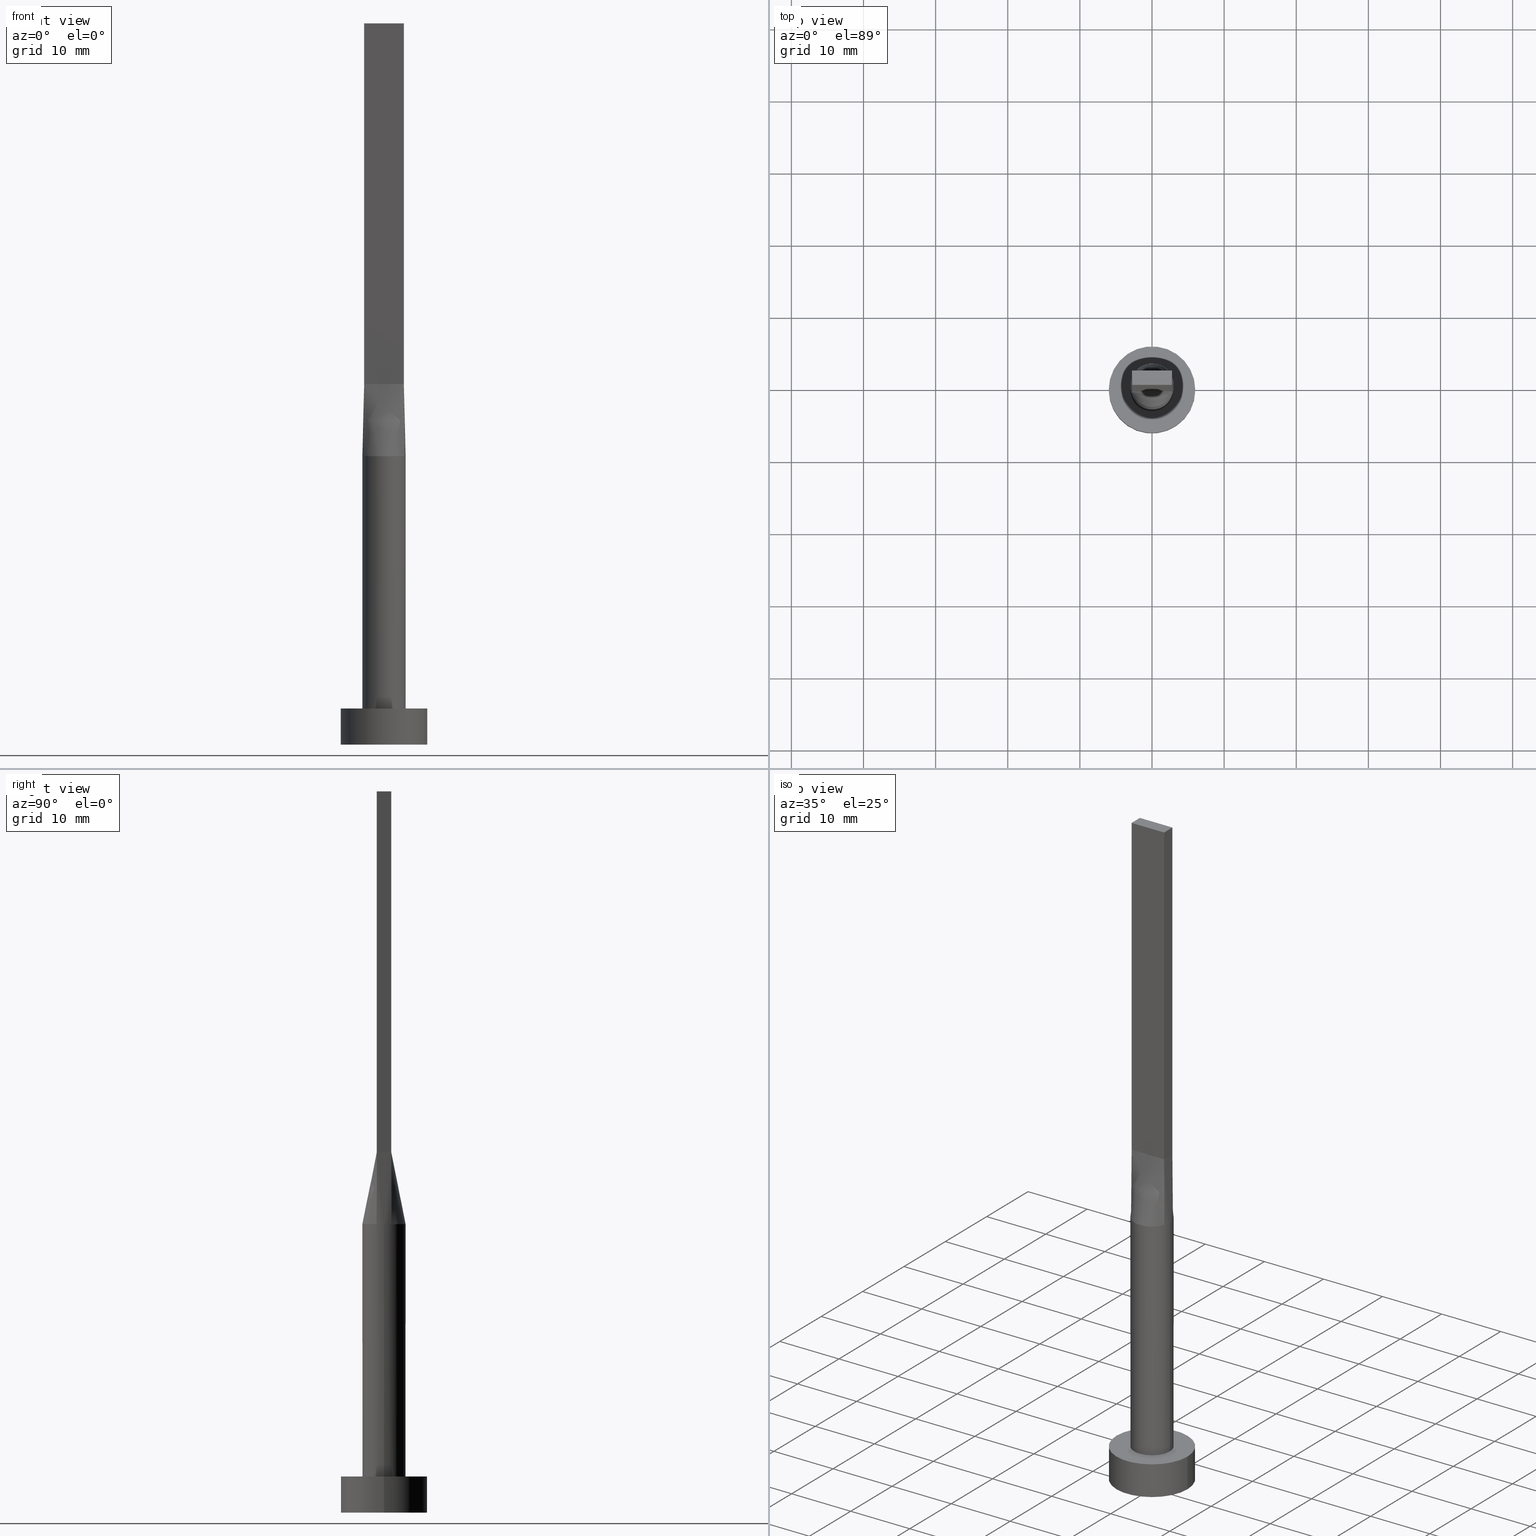
[diagram: canonical four-view strip — front | top / right | iso, engineering-drawing reading convention]
A machine part, canonical four-view strip (front | top / right | iso — engineering-drawing reading convention). The complete STEP part file that produces these views, byte-faithful:
ISO-10303-21;
HEADER;
FILE_DESCRIPTION (( 'STEP AP203' ),
    '1' );
FILE_NAME ('4708.STEP',
    '2023-02-13T10:27:56',
    ( '' ),
    ( '' ),
    'SwSTEP 2.0',
    'SolidWorks 2019',
    '' );
FILE_SCHEMA (( 'CONFIG_CONTROL_DESIGN' ));
ENDSEC;

DATA;
#1 = VECTOR ( 'NONE', #337, 1000.000000000000000 ) ;
#2 = DIRECTION ( 'NONE',  ( -1.000000000000000000, 7.885106708985487801E-17, 0.000000000000000000 ) ) ;
#3 = FACE_OUTER_BOUND ( 'NONE', #84, .T. ) ;
#4 = FACE_OUTER_BOUND ( 'NONE', #371, .T. ) ;
#5 = CARTESIAN_POINT ( 'NONE',  ( 2.749999999999999556, 1.000000000000000000, 50.00000000000000000 ) ) ;
#6 = EDGE_CURVE ( 'NONE', #541, #555, #210, .T. ) ;
#7 = EDGE_CURVE ( 'NONE', #327, #315, #133, .T. ) ;
#8 = AXIS2_PLACEMENT_3D ( 'NONE', #365, #230, #495 ) ;
#9 = COORDINATED_UNIVERSAL_TIME_OFFSET ( 1, 0, .AHEAD. ) ;
#10 = CARTESIAN_POINT ( 'NONE',  ( -2.625980160873452096, 1.476334031700886396, 39.99999999999998579 ) ) ;
#11 = ORIENTED_EDGE ( 'NONE', *, *, #336, .F. ) ;
#12 = DIRECTION ( 'NONE',  ( 1.000000000000000000, 8.881784197001252323E-16, 0.000000000000000000 ) ) ;
#13 = CARTESIAN_POINT ( 'NONE',  ( 2.115507543051069916, 2.149870311632976705, 40.00000000000000711 ) ) ;
#14 = ORIENTED_EDGE ( 'NONE', *, *, #80, .T. ) ;
#15 = EDGE_CURVE ( 'NONE', #374, #258, #182, .T. ) ;
#16 = CARTESIAN_POINT ( 'NONE',  ( -1.145833333333331261, 1.000000000000000000, 50.00000000000000000 ) ) ;
#17 = ORIENTED_EDGE ( 'NONE', *, *, #383, .T. ) ;
#18 = APPROVAL_STATUS ( 'not_yet_approved' ) ;
#19 = CIRCLE ( 'NONE', #354, 3.000000000000000444 ) ;
#20 = LINE ( 'NONE', #417, #218 ) ;
#21 = ORIENTED_EDGE ( 'NONE', *, *, #261, .F. ) ;
#22 = ORIENTED_EDGE ( 'NONE', *, *, #176, .T. ) ;
#23 = VECTOR ( 'NONE', #285, 1000.000000000000000 ) ;
#24 = ORIENTED_EDGE ( 'NONE', *, *, #338, .T. ) ;
#25 = LINE ( 'NONE', #373, #395 ) ;
#26 = ORIENTED_EDGE ( 'NONE', *, *, #451, .T. ) ;
#27 = ADVANCED_FACE ( 'NONE', ( #138 ), #562, .T. ) ;
#28 = LINE ( 'NONE', #423, #572 ) ;
#29 = CARTESIAN_POINT ( 'NONE',  ( 0.2291666666666665464, -0.9999999999999995559, 50.00000000000000711 ) ) ;
#30 = EDGE_CURVE ( 'NONE', #501, #326, #19, .T. ) ;
#31 = DIRECTION ( 'NONE',  ( -0.000000000000000000, -0.000000000000000000, -1.000000000000000000 ) ) ;
#32 = CARTESIAN_POINT ( 'NONE',  ( 1.833333333333333481, -0.9999999999999995559, 50.00000000000000000 ) ) ;
#33 = LOCAL_TIME ( 11, 27, 56.00000000000000000, #117 ) ;
#34 = DIRECTION ( 'NONE',  ( 0.000000000000000000, 0.000000000000000000, 1.000000000000000000 ) ) ;
#35 = CARTESIAN_POINT ( 'NONE',  ( -2.115507543051069472, -2.149870311632975373, 40.00000000000000000 ) ) ;
#36 = DIRECTION ( 'NONE',  ( -1.000000000000000000, -0.000000000000000000, -0.000000000000000000 ) ) ;
#37 = DIRECTION ( 'NONE',  ( 0.000000000000000000, 0.000000000000000000, 1.000000000000000000 ) ) ;
#38 = CARTESIAN_POINT ( 'NONE',  ( 2.749999999999999556, 0.3333333333333333148, 50.00000000000000000 ) ) ;
#39 = CC_DESIGN_APPROVAL ( #517, ( #128 ) ) ;
#40 = CIRCLE ( 'NONE', #370, 6.000000000000000888 ) ;
#41 = ADVANCED_FACE ( 'NONE', ( #394 ), #162, .T. ) ;
#42 = DIRECTION ( 'NONE',  ( 0.000000000000000000, 0.000000000000000000, 1.000000000000000000 ) ) ;
#43 = CARTESIAN_POINT ( 'NONE',  ( -0.4583333333333333703, -0.9999999999999995559, 50.00000000000000711 ) ) ;
#44 = FACE_OUTER_BOUND ( 'NONE', #246, .T. ) ;
#45 = DIRECTION ( 'NONE',  ( 0.000000000000000000, 0.000000000000000000, 1.000000000000000000 ) ) ;
#46 = CLOSED_SHELL ( 'NONE', ( #388, #216, #206, #375, #234, #100, #27, #405, #427, #41, #87, #93, #563, #502, #460 ) ) ;
#47 = CARTESIAN_POINT ( 'NONE',  ( -2.749999999999999556, 1.000000000000000000, 50.00000000000000000 ) ) ;
#48 = VECTOR ( 'NONE', #213, 1000.000000000000000 ) ;
#49 = EDGE_LOOP ( 'NONE', ( #202, #411 ) ) ;
#50 = PERSON_AND_ORGANIZATION ( #485, #156 ) ;
#51 = CARTESIAN_POINT ( 'NONE',  ( -1.338960936578149408, 2.706038443291637119, 39.99999999999999289 ) ) ;
#52 = PERSON_AND_ORGANIZATION ( #485, #156 ) ;
#53 = DIRECTION ( 'NONE',  ( 0.000000000000000000, 0.000000000000000000, 1.000000000000000000 ) ) ;
#54 = DIRECTION ( 'NONE',  ( 0.000000000000000000, 0.000000000000000000, 1.000000000000000000 ) ) ;
#55 = CARTESIAN_POINT ( 'NONE',  ( -2.314486317179579977, 1.928337902455808051, 40.00000000000000000 ) ) ;
#56 = ORIENTED_EDGE ( 'NONE', *, *, #462, .F. ) ;
#57 = CARTESIAN_POINT ( 'NONE',  ( -2.819429393986302657, 1.025247261300842760, 40.00000000000000000 ) ) ;
#58 = ORIENTED_EDGE ( 'NONE', *, *, #351, .T. ) ;
#59 = APPROVAL_ROLE ( '' ) ;
#60 = FACE_OUTER_BOUND ( 'NONE', #163, .T. ) ;
#61 = ORIENTED_EDGE ( 'NONE', *, *, #80, .F. ) ;
#62 = CIRCLE ( 'NONE', #408, 3.000000000000000444 ) ;
#63 = LINE ( 'NONE', #71, #48 ) ;
#64 = ORIENTED_EDGE ( 'NONE', *, *, #151, .T. ) ;
#65 = CC_DESIGN_APPROVAL ( #145, ( #250 ) ) ;
#66 = B_SPLINE_SURFACE_WITH_KNOTS ( 'NONE', 3, 1, ( 
 ( #132, #476 ),
 ( #303, #85 ),
 ( #522, #79 ),
 ( #431, #567 ),
 ( #390, #174 ),
 ( #482, #340 ) ),
 .UNSPECIFIED., .F., .F., .F.,
 ( 4, 2, 4 ),
 ( 2, 2 ),
 ( 0.000000000000000000, 0.5000000000000000000, 1.000000000000000000 ),
 ( 0.000000000000000000, 1.000000000000000000 ),
 .UNSPECIFIED. ) ;
#67 = AXIS2_PLACEMENT_3D ( 'NONE', #114, #31, #217 ) ;
#68 = DIRECTION ( 'NONE',  ( -2.168404344971009854E-16, -1.000000000000000000, 0.000000000000000000 ) ) ;
#69 = CARTESIAN_POINT ( 'NONE',  ( -2.625980160873452540, -1.476334031700885507, 40.00000000000000711 ) ) ;
#70 = EDGE_CURVE ( 'NONE', #447, #248, #175, .T. ) ;
#71 = CARTESIAN_POINT ( 'NONE',  ( -2.749999999999999556, 1.000000000000000000, 100.0000000000000000 ) ) ;
#72 = CARTESIAN_POINT ( 'NONE',  ( 0.3502136323054372835, -3.000000000000000444, 39.99999999999998579 ) ) ;
#73 = CALENDAR_DATE ( 2023, 13, 2 ) ;
#74 = CARTESIAN_POINT ( 'NONE',  ( 0.000000000000000000, 0.000000000000000000, 0.000000000000000000 ) ) ;
#75 = CARTESIAN_POINT ( 'NONE',  ( -1.833333333333333037, -0.9999999999999995559, 50.00000000000000000 ) ) ;
#76 = CC_DESIGN_SECURITY_CLASSIFICATION ( #128, ( #571 ) ) ;
#77 = EDGE_CURVE ( 'NONE', #277, #447, #264, .T. ) ;
#78 = ORIENTED_EDGE ( 'NONE', *, *, #346, .F. ) ;
#79 = CARTESIAN_POINT ( 'NONE',  ( -2.749999999999999556, 0.3333333333333337034, 50.00000000000000000 ) ) ;
#80 = EDGE_CURVE ( 'NONE', #289, #164, #442, .T. ) ;
#81 = AXIS2_PLACEMENT_3D ( 'NONE', #378, #288, #166 ) ;
#82 = AXIS2_PLACEMENT_3D ( 'NONE', #229, #406, #12 ) ;
#83 = CARTESIAN_POINT ( 'NONE',  ( 2.115507543051069916, 2.149870311632976705, 40.00000000000000711 ) ) ;
#84 = EDGE_LOOP ( 'NONE', ( #171, #11, #283, #243 ) ) ;
#85 = CARTESIAN_POINT ( 'NONE',  ( -2.749999999999999556, 0.6666666666666668517, 50.00000000000000000 ) ) ;
#86 = CARTESIAN_POINT ( 'NONE',  ( -2.750000000000000000, -0.9999999999999993339, 100.0000000000000000 ) ) ;
#87 = ADVANCED_FACE ( 'NONE', ( #362 ), #142, .F. ) ;
#88 = LINE ( 'NONE', #265, #231 ) ;
#89 = CARTESIAN_POINT ( 'NONE',  ( 2.819380270465311700, 1.025229189260112639, 40.00000000000000000 ) ) ;
#90 = CARTESIAN_POINT ( 'NONE',  ( -2.750000000000000000, -0.9999999999999993339, 50.00000000000000000 ) ) ;
#91 = FACE_OUTER_BOUND ( 'NONE', #481, .T. ) ;
#92 = CARTESIAN_POINT ( 'NONE',  ( 0.000000000000000000, 0.000000000000000000, 40.00000000000000000 ) ) ;
#93 = ADVANCED_FACE ( 'NONE', ( #3 ), #403, .F. ) ;
#94 = CARTESIAN_POINT ( 'NONE',  ( 0.6998073349918605413, 2.936959335800557014, 40.00000000000000000 ) ) ;
#95 = APPROVAL_PERSON_ORGANIZATION ( #558, #361, #215 ) ;
#96 = CC_DESIGN_PERSON_AND_ORGANIZATION_ASSIGNMENT ( #319, #108, ( #571 ) ) ;
#97 = DIRECTION ( 'NONE',  ( 1.000000000000000000, 0.000000000000000000, 0.000000000000000000 ) ) ;
#98 = DATE_AND_TIME ( #355, #493 ) ;
#99 = CARTESIAN_POINT ( 'NONE',  ( 0.3502136323054376721, 3.000000000000000444, 40.00000000000000000 ) ) ;
#100 = ADVANCED_FACE ( 'NONE', ( #193 ), #312, .T. ) ;
#101 = ORIENTED_EDGE ( 'NONE', *, *, #543, .F. ) ;
#102 = DIRECTION ( 'NONE',  ( -0.006937837988376364777, 0.002522850177591326286, 0.9999727504442450510 ) ) ;
#103 = CARTESIAN_POINT ( 'NONE',  ( 0.000000000000000000, 0.000000000000000000, 40.00000000000000000 ) ) ;
#104 =( GEOMETRIC_REPRESENTATION_CONTEXT ( 3 ) GLOBAL_UNCERTAINTY_ASSIGNED_CONTEXT ( ( #577 ) ) GLOBAL_UNIT_ASSIGNED_CONTEXT ( ( #531, #494, #400 ) ) REPRESENTATION_CONTEXT ( 'NONE', 'WORKASPACE' ) );
#105 = ORIENTED_EDGE ( 'NONE', *, *, #332, .T. ) ;
#106 = DIRECTION ( 'NONE',  ( -1.000000000000000000, 0.000000000000000000, 0.000000000000000000 ) ) ;
#107 = EDGE_LOOP ( 'NONE', ( #116, #290, #78, #508 ) ) ;
#108 = PERSON_AND_ORGANIZATION_ROLE ( 'design_supplier' ) ;
#109 = CARTESIAN_POINT ( 'NONE',  ( 3.000000000000000444, 3.673940397442060361E-16, 40.00000000000000000 ) ) ;
#110 = EDGE_CURVE ( 'NONE', #315, #195, #115, .T. ) ;
#111 = ORIENTED_EDGE ( 'NONE', *, *, #336, .T. ) ;
#112 = APPROVAL_DATE_TIME ( #503, #517 ) ;
#113 = AXIS2_PLACEMENT_3D ( 'NONE', #92, #53, #97 ) ;
#114 = CARTESIAN_POINT ( 'NONE',  ( 0.000000000000000000, 0.000000000000000000, 5.000000000000000000 ) ) ;
#115 = B_SPLINE_CURVE_WITH_KNOTS ( 'NONE', 3,
 ( #197, #529, #407, #140, #13, #542, #445, #94, #99, #271, #269, #539, #276, #449, #55, #239, #316, #57 ),
 .UNSPECIFIED., .F., .F.,
 ( 4, 2, 2, 2, 2, 2, 2, 2, 4 ),
 ( 0.000000000000000000, 0.1249999999999998890, 0.2499999999999997780, 0.3749999999999997780, 0.4999999999999997780, 0.6249999999999997780, 0.7499999999999997780, 0.8749999999999998890, 1.000000000000000000 ),
 .UNSPECIFIED. ) ;
#116 = ORIENTED_EDGE ( 'NONE', *, *, #110, .T. ) ;
#117 = COORDINATED_UNIVERSAL_TIME_OFFSET ( 1, 0, .AHEAD. ) ;
#118 = AXIS2_PLACEMENT_3D ( 'NONE', #282, #457, #245 ) ;
#119 = ORIENTED_EDGE ( 'NONE', *, *, #196, .T. ) ;
#120 = DIRECTION ( 'NONE',  ( 1.000000000000000000, 0.000000000000000000, 0.000000000000000000 ) ) ;
#121 = CARTESIAN_POINT ( 'NONE',  ( 2.291666666666666963, 1.000000000000000000, 50.00000000000000000 ) ) ;
#122 = CALENDAR_DATE ( 2023, 13, 2 ) ;
#123 = CARTESIAN_POINT ( 'NONE',  ( -2.819429393986302657, 1.025247261300842760, 40.00000000000000000 ) ) ;
#124 = CARTESIAN_POINT ( 'NONE',  ( 1.627925520694712080, 2.539128397820340943, 40.00000000000000000 ) ) ;
#125 = DIRECTION ( 'NONE',  ( -2.168404344971009854E-16, -1.000000000000000000, 0.000000000000000000 ) ) ;
#126 = AXIS2_PLACEMENT_3D ( 'NONE', #205, #453, #314 ) ;
#127 = CARTESIAN_POINT ( 'NONE',  ( 1.338960936578149630, -2.706038443291638007, 40.00000000000000711 ) ) ;
#128 = SECURITY_CLASSIFICATION ( '', '', #456 ) ;
#129 = CARTESIAN_POINT ( 'NONE',  ( 2.749999999999999556, 1.000000000000000000, 50.00000000000000000 ) ) ;
#130 = CARTESIAN_POINT ( 'NONE',  ( -2.749999999999999556, 1.000000000000000000, 50.00000000000000000 ) ) ;
#131 = EDGE_CURVE ( 'NONE', #392, #552, #398, .T. ) ;
#132 = CARTESIAN_POINT ( 'NONE',  ( -2.819380270465311700, 1.025229189260112861, 40.00000000000000000 ) ) ;
#133 = CIRCLE ( 'NONE', #424, 3.000000000000000444 ) ;
#134 = APPROVAL_PERSON_ORGANIZATION ( #154, #517, #59 ) ;
#135 = CYLINDRICAL_SURFACE ( 'NONE', #478, 3.000000000000000444 ) ;
#136 = CARTESIAN_POINT ( 'NONE',  ( 2.739088299662392867, 1.246032108968142538, 40.00000000000000711 ) ) ;
#137 = CARTESIAN_POINT ( 'NONE',  ( 0.000000000000000000, 0.000000000000000000, 0.000000000000000000 ) ) ;
#138 = FACE_OUTER_BOUND ( 'NONE', #507, .T. ) ;
#139 = CARTESIAN_POINT ( 'NONE',  ( 2.750000000000000000, -0.9999999999999997780, 100.0000000000000000 ) ) ;
#140 = CARTESIAN_POINT ( 'NONE',  ( 2.314486317179579977, 1.928337902455807384, 40.00000000000000000 ) ) ;
#141 = VECTOR ( 'NONE', #429, 1000.000000000000000 ) ;
#142 = PLANE ( 'NONE',  #126 ) ;
#143 = LOCAL_TIME ( 11, 27, 56.00000000000000000, #244 ) ;
#144 = DIRECTION ( 'NONE',  ( 1.000000000000000000, 0.000000000000000000, 0.000000000000000000 ) ) ;
#145 = APPROVAL ( #402, 'NEUR�EN�' ) ;
#146 = CARTESIAN_POINT ( 'NONE',  ( -2.739088299662392423, 1.246032108968142316, 40.00000000000000000 ) ) ;
#147 = ORIENTED_EDGE ( 'NONE', *, *, #569, .T. ) ;
#148 = B_SPLINE_SURFACE_WITH_KNOTS ( 'NONE', 3, 1, ( 
 ( #257, #304 ),
 ( #389, #225 ),
 ( #573, #524 ),
 ( #263, #38 ),
 ( #435, #301 ),
 ( #89, #129 ) ),
 .UNSPECIFIED., .F., .F., .F.,
 ( 4, 2, 4 ),
 ( 2, 2 ),
 ( 0.000000000000000000, 0.5000000000000000000, 1.000000000000000000 ),
 ( 0.000000000000000000, 1.000000000000000000 ),
 .UNSPECIFIED. ) ;
#149 = PLANE ( 'NONE',  #379 ) ;
#150 = DIRECTION ( 'NONE',  ( 1.000000000000000000, 0.000000000000000000, 0.000000000000000000 ) ) ;
#151 = EDGE_CURVE ( 'NONE', #315, #164, #376, .T. ) ;
#152 = MANIFOLD_SOLID_BREP ( 'P�idat vysunut�m5', #46 ) ;
#153 = ORIENTED_EDGE ( 'NONE', *, *, #7, .F. ) ;
#154 = PERSON_AND_ORGANIZATION ( #485, #156 ) ;
#155 = CARTESIAN_POINT ( 'NONE',  ( 0.2291666666666679342, 1.000000000000000000, 50.00000000000000711 ) ) ;
#156 = ORGANIZATION ( 'NEUR�EN�', 'NEUR�EN�', '' ) ;
#157 = ORIENTED_EDGE ( 'NONE', *, *, #131, .F. ) ;
#158 = DIRECTION ( 'NONE',  ( -0.000000000000000000, -0.000000000000000000, -1.000000000000000000 ) ) ;
#159 = EDGE_LOOP ( 'NONE', ( #463, #323, #58, #191 ) ) ;
#160 = ADVANCED_BREP_SHAPE_REPRESENTATION ( '4708', ( #152, #397 ), #104 ) ;
#161 = LINE ( 'NONE', #130, #581 ) ;
#162 = B_SPLINE_SURFACE_WITH_KNOTS ( 'NONE', 3, 1, ( 
 ( #564, #580 ),
 ( #136, #470 ),
 ( #348, #121 ),
 ( #170, #335 ),
 ( #83, #518 ),
 ( #124, #296 ),
 ( #259, #474 ),
 ( #432, #273 ),
 ( #203, #155 ),
 ( #410, #497 ),
 ( #236, #356 ),
 ( #51, #536 ),
 ( #443, #16 ),
 ( #401, #310 ),
 ( #190, #233 ),
 ( #10, #353 ),
 ( #146, #532 ),
 ( #488, #47 ) ),
 .UNSPECIFIED., .F., .F., .F.,
 ( 4, 2, 2, 2, 2, 2, 2, 2, 4 ),
 ( 2, 2 ),
 ( 0.000000000000000000, 0.1249999999999998890, 0.2499999999999997780, 0.3749999999999997780, 0.4999999999999997780, 0.6249999999999997780, 0.7499999999999997780, 0.8749999999999998890, 1.000000000000000000 ),
 ( 0.000000000000000000, 1.000000000000000000 ),
 .UNSPECIFIED. ) ;
#163 = EDGE_LOOP ( 'NONE', ( #330, #204 ) ) ;
#164 = VERTEX_POINT ( 'NONE', #334 ) ;
#165 = PERSON_AND_ORGANIZATION ( #485, #156 ) ;
#166 = DIRECTION ( 'NONE',  ( 1.000000000000000000, 0.000000000000000000, -0.000000000000000000 ) ) ;
#167 = CARTESIAN_POINT ( 'NONE',  ( 0.6998073349918603192, -2.936959335800557902, 40.00000000000000711 ) ) ;
#168 = APPROVAL_STATUS ( 'not_yet_approved' ) ;
#169 = CARTESIAN_POINT ( 'NONE',  ( -2.749999999999999556, 1.000000000000000000, 50.00000000000000000 ) ) ;
#170 = CARTESIAN_POINT ( 'NONE',  ( 2.314486317179579977, 1.928337902455807384, 40.00000000000000000 ) ) ;
#171 = ORIENTED_EDGE ( 'NONE', *, *, #131, .T. ) ;
#172 = CARTESIAN_POINT ( 'NONE',  ( 0.000000000000000000, 0.000000000000000000, 5.000000000000000000 ) ) ;
#173 = CARTESIAN_POINT ( 'NONE',  ( 0.000000000000000000, 0.000000000000000000, 40.00000000000000000 ) ) ;
#174 = CARTESIAN_POINT ( 'NONE',  ( -2.750000000000000000, -0.6666666666666658525, 50.00000000000000000 ) ) ;
#175 = CIRCLE ( 'NONE', #113, 3.000000000000000444 ) ;
#176 = EDGE_CURVE ( 'NONE', #326, #501, #62, .T. ) ;
#177 = DIRECTION ( 'NONE',  ( -0.000000000000000000, -0.000000000000000000, -1.000000000000000000 ) ) ;
#178 = DIRECTION ( 'NONE',  ( -0.000000000000000000, -0.000000000000000000, -1.000000000000000000 ) ) ;
#179 = EDGE_CURVE ( 'NONE', #313, #541, #511, .T. ) ;
#180 = FACE_OUTER_BOUND ( 'NONE', #159, .T. ) ;
#181 = DIRECTION ( 'NONE',  ( 0.000000000000000000, 0.000000000000000000, 1.000000000000000000 ) ) ;
#182 = CIRCLE ( 'NONE', #499, 6.000000000000000888 ) ;
#183 = LINE ( 'NONE', #189, #548 ) ;
#184 = CARTESIAN_POINT ( 'NONE',  ( 2.291666666666666519, -0.9999999999999995559, 50.00000000000000000 ) ) ;
#185 = VECTOR ( 'NONE', #220, 1000.000000000000000 ) ;
#186 = CC_DESIGN_PERSON_AND_ORGANIZATION_ASSIGNMENT ( #412, #208, ( #571 ) ) ;
#187 = VECTOR ( 'NONE', #491, 1000.000000000000227 ) ;
#188 = EDGE_CURVE ( 'NONE', #327, #501, #369, .T. ) ;
#189 = CARTESIAN_POINT ( 'NONE',  ( -2.784690135232655628, 1.012614594630056430, 45.00000000000000000 ) ) ;
#190 = CARTESIAN_POINT ( 'NONE',  ( -2.314486317179579977, 1.928337902455808051, 40.00000000000000000 ) ) ;
#191 = ORIENTED_EDGE ( 'NONE', *, *, #179, .T. ) ;
#192 = APPLICATION_PROTOCOL_DEFINITION ( 'international standard', 'config_control_design', 1994, #414 ) ;
#193 = FACE_OUTER_BOUND ( 'NONE', #363, .T. ) ;
#194 = VECTOR ( 'NONE', #492, 1000.000000000000000 ) ;
#195 = VERTEX_POINT ( 'NONE', #123 ) ;
#196 = EDGE_CURVE ( 'NONE', #552, #289, #28, .T. ) ;
#197 = CARTESIAN_POINT ( 'NONE',  ( 2.819412401233197141, 1.025240989080170806, 40.00000000000000000 ) ) ;
#198 = APPROVAL_PERSON_ORGANIZATION ( #52, #145, #496 ) ;
#199 = ORIENTED_EDGE ( 'NONE', *, *, #486, .F. ) ;
#200 = EDGE_LOOP ( 'NONE', ( #292, #212, #64, #61, #101 ) ) ;
#201 = CARTESIAN_POINT ( 'NONE',  ( 3.000000000000000444, 3.673940397442060361E-16, 5.000000000000000000 ) ) ;
#202 = ORIENTED_EDGE ( 'NONE', *, *, #176, .F. ) ;
#203 = CARTESIAN_POINT ( 'NONE',  ( 0.3502136323054376721, 3.000000000000000444, 40.00000000000000000 ) ) ;
#204 = ORIENTED_EDGE ( 'NONE', *, *, #311, .F. ) ;
#205 = CARTESIAN_POINT ( 'NONE',  ( 2.749999999999999556, 1.000000000000000000, 100.0000000000000000 ) ) ;
#206 = ADVANCED_FACE ( 'NONE', ( #469 ), #211, .T. ) ;
#207 = EDGE_LOOP ( 'NONE', ( #498, #26, #467, #242 ) ) ;
#208 = PERSON_AND_ORGANIZATION_ROLE ( 'creator' ) ;
#209 = CARTESIAN_POINT ( 'NONE',  ( 2.750000000000000000, -0.9999999999999997780, 100.0000000000000000 ) ) ;
#210 = LINE ( 'NONE', #515, #141 ) ;
#211 = CYLINDRICAL_SURFACE ( 'NONE', #67, 6.000000000000000888 ) ;
#212 = ORIENTED_EDGE ( 'NONE', *, *, #7, .T. ) ;
#213 = DIRECTION ( 'NONE',  ( -0.000000000000000000, -0.000000000000000000, -1.000000000000000000 ) ) ;
#214 = CARTESIAN_POINT ( 'NONE',  ( -2.739088299662391979, -1.246032108968140983, 39.99999999999999289 ) ) ;
#215 = APPROVAL_ROLE ( '' ) ;
#216 = ADVANCED_FACE ( 'NONE', ( #506 ), #461, .T. ) ;
#217 = DIRECTION ( 'NONE',  ( -1.000000000000000000, 0.000000000000000000, 0.000000000000000000 ) ) ;
#218 = VECTOR ( 'NONE', #158, 1000.000000000000000 ) ;
#219 = CARTESIAN_POINT ( 'NONE',  ( -0.6998073349918614294, -2.936959335800558346, 40.00000000000000711 ) ) ;
#220 = DIRECTION ( 'NONE',  ( -0.000000000000000000, -0.000000000000000000, -1.000000000000000000 ) ) ;
#221 = CARTESIAN_POINT ( 'NONE',  ( -0.3502136323054380052, -3.000000000000000888, 40.00000000000000000 ) ) ;
#222 = CARTESIAN_POINT ( 'NONE',  ( -2.749999999999999556, 1.000000000000000000, 50.00000000000000000 ) ) ;
#223 = FACE_OUTER_BOUND ( 'NONE', #574, .T. ) ;
#224 = LINE ( 'NONE', #519, #322 ) ;
#225 = CARTESIAN_POINT ( 'NONE',  ( 2.750000000000000000, -0.6666666666666666297, 50.00000000000000000 ) ) ;
#226 = CARTESIAN_POINT ( 'NONE',  ( 2.520833333333333037, -0.9999999999999995559, 50.00000000000000000 ) ) ;
#227 = CARTESIAN_POINT ( 'NONE',  ( 2.749999999999999556, 1.000000000000000000, 100.0000000000000000 ) ) ;
#228 = CARTESIAN_POINT ( 'NONE',  ( 0.000000000000000000, 0.000000000000000000, 5.000000000000000000 ) ) ;
#229 = CARTESIAN_POINT ( 'NONE',  ( 0.000000000000000000, 0.000000000000000000, 40.00000000000000000 ) ) ;
#230 = DIRECTION ( 'NONE',  ( -0.000000000000000000, -0.000000000000000000, -1.000000000000000000 ) ) ;
#231 = VECTOR ( 'NONE', #260, 1000.000000000000000 ) ;
#232 = PERSON_AND_ORGANIZATION_ROLE ( 'design_owner' ) ;
#233 = CARTESIAN_POINT ( 'NONE',  ( -1.833333333333331261, 1.000000000000000000, 50.00000000000000000 ) ) ;
#234 = ADVANCED_FACE ( 'NONE', ( #60 ), #426, .F. ) ;
#235 = PLANE ( 'NONE',  #430 ) ;
#236 = CARTESIAN_POINT ( 'NONE',  ( -0.6998073349918608743, 2.936959335800557014, 40.00000000000000000 ) ) ;
#237 = ORIENTED_EDGE ( 'NONE', *, *, #70, .F. ) ;
#238 = DIRECTION ( 'NONE',  ( 1.000000000000000000, 0.000000000000000000, -0.000000000000000000 ) ) ;
#239 = CARTESIAN_POINT ( 'NONE',  ( -2.625980160873452096, 1.476334031700886396, 39.99999999999998579 ) ) ;
#240 = ORIENTED_EDGE ( 'NONE', *, *, #77, .T. ) ;
#241 = DIRECTION ( 'NONE',  ( 2.168404344971010101E-16, 1.000000000000000000, 0.000000000000000000 ) ) ;
#242 = ORIENTED_EDGE ( 'NONE', *, *, #332, .F. ) ;
#243 = ORIENTED_EDGE ( 'NONE', *, *, #262, .T. ) ;
#244 = COORDINATED_UNIVERSAL_TIME_OFFSET ( 1, 0, .AHEAD. ) ;
#245 = DIRECTION ( 'NONE',  ( 1.000000000000000000, 0.000000000000000000, 0.000000000000000000 ) ) ;
#246 = EDGE_LOOP ( 'NONE', ( #420, #350 ) ) ;
#247 = CARTESIAN_POINT ( 'NONE',  ( -3.000000000000000444, 0.000000000000000000, 5.000000000000000000 ) ) ;
#248 = VERTEX_POINT ( 'NONE', #331 ) ;
#249 = CARTESIAN_POINT ( 'NONE',  ( -2.750000000000000000, -0.9999999999999993339, 100.0000000000000000 ) ) ;
#250 = PRODUCT_DEFINITION ( 'NEZN�M�', '', #571, #437 ) ;
#251 = CARTESIAN_POINT ( 'NONE',  ( -1.338960936578150518, -2.706038443291638007, 40.00000000000001421 ) ) ;
#252 = PERSON_AND_ORGANIZATION_ROLE ( 'classification_officer' ) ;
#253 = DIRECTION ( 'NONE',  ( -0.006937837988376408145, -0.002522850177591326286, 0.9999727504442450510 ) ) ;
#254 = CARTESIAN_POINT ( 'NONE',  ( 1.627925520694712080, -2.539128397820341831, 39.99999999999999289 ) ) ;
#255 = DIRECTION ( 'NONE',  ( 1.000000000000000000, 0.000000000000000000, 0.000000000000000000 ) ) ;
#256 = CARTESIAN_POINT ( 'NONE',  ( -1.145833333333333259, -0.9999999999999995559, 50.00000000000000711 ) ) ;
#257 = CARTESIAN_POINT ( 'NONE',  ( 2.819380270465311700, -1.025229189260113083, 40.00000000000000000 ) ) ;
#258 = VERTEX_POINT ( 'NONE', #295 ) ;
#259 = CARTESIAN_POINT ( 'NONE',  ( 1.338960936578149630, 2.706038443291637563, 40.00000000000000000 ) ) ;
#260 = DIRECTION ( 'NONE',  ( -0.000000000000000000, -0.000000000000000000, -1.000000000000000000 ) ) ;
#261 = EDGE_CURVE ( 'NONE', #195, #277, #534, .T. ) ;
#262 = EDGE_CURVE ( 'NONE', #555, #392, #63, .T. ) ;
#263 = CARTESIAN_POINT ( 'NONE',  ( 3.000000000000000444, 0.3523499553598119505, 39.99999999999998579 ) ) ;
#264 = CIRCLE ( 'NONE', #578, 3.000000000000000444 ) ;
#265 = CARTESIAN_POINT ( 'NONE',  ( -3.000000000000000444, 0.000000000000000000, 40.00000000000000000 ) ) ;
#266 = DIRECTION ( 'NONE',  ( 1.000000000000000000, -7.885106708985487801E-17, 0.000000000000000000 ) ) ;
#267 = CARTESIAN_POINT ( 'NONE',  ( -2.314486317179578645, -1.928337902455806496, 40.00000000000000000 ) ) ;
#268 = CARTESIAN_POINT ( 'NONE',  ( -2.784690135232656072, -1.012614594630055764, 45.00000000000000000 ) ) ;
#269 = CARTESIAN_POINT ( 'NONE',  ( -0.6998073349918608743, 2.936959335800557014, 40.00000000000000000 ) ) ;
#270 = AXIS2_PLACEMENT_3D ( 'NONE', #393, #42, #343 ) ;
#271 = CARTESIAN_POINT ( 'NONE',  ( -0.3502136323054376721, 2.999999999999999112, 39.99999999999999289 ) ) ;
#272 = DIRECTION ( 'NONE',  ( 0.006937837988376408145, -0.002522850177591348404, 0.9999727504442450510 ) ) ;
#273 = CARTESIAN_POINT ( 'NONE',  ( 0.4583333333333349247, 1.000000000000000000, 50.00000000000000000 ) ) ;
#274 = ORIENTED_EDGE ( 'NONE', *, *, #451, .F. ) ;
#275 = CARTESIAN_POINT ( 'NONE',  ( -2.750000000000000000, -0.9999999999999993339, 100.0000000000000000 ) ) ;
#276 = CARTESIAN_POINT ( 'NONE',  ( -1.627925520694712747, 2.539128397820341831, 40.00000000000000711 ) ) ;
#277 = VERTEX_POINT ( 'NONE', #560 ) ;
#278 = CARTESIAN_POINT ( 'NONE',  ( 2.784690135232656072, -1.012614594630056208, 45.00000000000000000 ) ) ;
#279 = CARTESIAN_POINT ( 'NONE',  ( -2.749999999999999556, 1.000000000000000000, 100.0000000000000000 ) ) ;
#280 = ORIENTED_EDGE ( 'NONE', *, *, #351, .F. ) ;
#281 = CC_DESIGN_DATE_AND_TIME_ASSIGNMENT ( #328, #550, ( #250 ) ) ;
#282 = CARTESIAN_POINT ( 'NONE',  ( 0.000000000000000000, 0.000000000000000000, 5.000000000000000000 ) ) ;
#283 = ORIENTED_EDGE ( 'NONE', *, *, #418, .F. ) ;
#284 = PERSON_AND_ORGANIZATION ( #485, #156 ) ;
#285 = DIRECTION ( 'NONE',  ( -0.000000000000000000, -0.000000000000000000, -1.000000000000000000 ) ) ;
#286 = ORIENTED_EDGE ( 'NONE', *, *, #446, .T. ) ;
#287 = CALENDAR_DATE ( 2023, 13, 2 ) ;
#288 = DIRECTION ( 'NONE',  ( 0.000000000000000000, 0.000000000000000000, 1.000000000000000000 ) ) ;
#289 = VERTEX_POINT ( 'NONE', #547 ) ;
#290 = ORIENTED_EDGE ( 'NONE', *, *, #462, .T. ) ;
#291 = AXIS2_PLACEMENT_3D ( 'NONE', #473, #514, #120 ) ;
#292 = ORIENTED_EDGE ( 'NONE', *, *, #486, .T. ) ;
#293 = CARTESIAN_POINT ( 'NONE',  ( 0.000000000000000000, 0.000000000000000000, 5.000000000000000000 ) ) ;
#294 = CARTESIAN_POINT ( 'NONE',  ( 2.819380270465311700, -1.025229189260112417, 40.00000000000000000 ) ) ;
#295 = CARTESIAN_POINT ( 'NONE',  ( 6.000000000000000888, 7.347880794884120722E-16, 0.000000000000000000 ) ) ;
#296 = CARTESIAN_POINT ( 'NONE',  ( 1.145833333333335036, 1.000000000000000000, 50.00000000000000000 ) ) ;
#297 = FACE_OUTER_BOUND ( 'NONE', #359, .T. ) ;
#298 = VECTOR ( 'NONE', #102, 1000.000000000000227 ) ;
#299 = CARTESIAN_POINT ( 'NONE',  ( 2.115507543051068140, -2.149870311632976705, 39.99999999999998579 ) ) ;
#300 = AXIS2_PLACEMENT_3D ( 'NONE', #487, #54, #238 ) ;
#301 = CARTESIAN_POINT ( 'NONE',  ( 2.749999999999999556, 0.6666666666666666297, 50.00000000000000000 ) ) ;
#302 = PLANE ( 'NONE',  #368 ) ;
#303 = CARTESIAN_POINT ( 'NONE',  ( -2.936168591633194769, 0.7040613060484341990, 40.00000000000000000 ) ) ;
#304 = CARTESIAN_POINT ( 'NONE',  ( 2.750000000000000000, -1.000000000000000000, 50.00000000000000000 ) ) ;
#305 = CARTESIAN_POINT ( 'NONE',  ( 0.4583333333333332593, -0.9999999999999995559, 50.00000000000000000 ) ) ;
#306 = ORIENTED_EDGE ( 'NONE', *, *, #30, .T. ) ;
#307 = DIRECTION ( 'NONE',  ( 0.000000000000000000, 0.000000000000000000, 1.000000000000000000 ) ) ;
#308 = DIRECTION ( 'NONE',  ( 1.000000000000000000, 0.000000000000000000, 0.000000000000000000 ) ) ;
#309 = DIRECTION ( 'NONE',  ( 2.168404344971008868E-16, -1.000000000000000000, 0.000000000000000000 ) ) ;
#310 = CARTESIAN_POINT ( 'NONE',  ( -1.604166666666664520, 1.000000000000000000, 50.00000000000000000 ) ) ;
#311 = EDGE_CURVE ( 'NONE', #258, #374, #40, .T. ) ;
#312 = CYLINDRICAL_SURFACE ( 'NONE', #8, 3.000000000000000444 ) ;
#313 = VERTEX_POINT ( 'NONE', #381 ) ;
#314 = DIRECTION ( 'NONE',  ( 0.000000000000000000, -0.000000000000000000, -1.000000000000000000 ) ) ;
#315 = VERTEX_POINT ( 'NONE', #321 ) ;
#316 = CARTESIAN_POINT ( 'NONE',  ( -2.739088299662392423, 1.246032108968142316, 40.00000000000000000 ) ) ;
#317 = ORIENTED_EDGE ( 'NONE', *, *, #196, .F. ) ;
#318 = EDGE_CURVE ( 'NONE', #433, #404, #357, .T. ) ;
#319 = PERSON_AND_ORGANIZATION ( #485, #156 ) ;
#320 = CC_DESIGN_APPROVAL ( #361, ( #571 ) ) ;
#321 = CARTESIAN_POINT ( 'NONE',  ( 2.819412401233197141, 1.025240989080170806, 40.00000000000000000 ) ) ;
#322 = VECTOR ( 'NONE', #125, 1000.000000000000000 ) ;
#323 = ORIENTED_EDGE ( 'NONE', *, *, #418, .T. ) ;
#324 = DATE_TIME_ROLE ( 'classification_date' ) ;
#325 = DIRECTION ( 'NONE',  ( -2.168404344971008868E-16, 1.000000000000000000, 0.000000000000000000 ) ) ;
#326 = VERTEX_POINT ( 'NONE', #247 ) ;
#327 = VERTEX_POINT ( 'NONE', #413 ) ;
#328 = DATE_AND_TIME ( #73, #33 ) ;
#329 = LINE ( 'NONE', #249, #23 ) ;
#330 = ORIENTED_EDGE ( 'NONE', *, *, #15, .F. ) ;
#331 = CARTESIAN_POINT ( 'NONE',  ( 2.819430526142641558, -1.025247683279450817, 40.00000000000000000 ) ) ;
#332 = EDGE_CURVE ( 'NONE', #404, #374, #20, .T. ) ;
#333 = CARTESIAN_POINT ( 'NONE',  ( 2.625980160873452984, -1.476334031700886618, 40.00000000000000000 ) ) ;
#334 = CARTESIAN_POINT ( 'NONE',  ( 2.749999999999999556, 1.000000000000000000, 50.00000000000000000 ) ) ;
#335 = CARTESIAN_POINT ( 'NONE',  ( 1.833333333333334370, 1.000000000000000000, 50.00000000000000000 ) ) ;
#336 = EDGE_CURVE ( 'NONE', #366, #552, #329, .T. ) ;
#337 = DIRECTION ( 'NONE',  ( -0.000000000000000000, -0.000000000000000000, -1.000000000000000000 ) ) ;
#338 = EDGE_CURVE ( 'NONE', #313, #289, #25, .T. ) ;
#339 = CARTESIAN_POINT ( 'NONE',  ( -2.520833333333333037, -0.9999999999999993339, 50.00000000000000000 ) ) ;
#340 = CARTESIAN_POINT ( 'NONE',  ( -2.750000000000000000, -0.9999999999999991118, 50.00000000000000000 ) ) ;
#341 = CIRCLE ( 'NONE', #82, 3.000000000000000444 ) ;
#342 = FACE_OUTER_BOUND ( 'NONE', #200, .T. ) ;
#343 = DIRECTION ( 'NONE',  ( 1.000000000000000000, 0.000000000000000000, 0.000000000000000000 ) ) ;
#344 = LINE ( 'NONE', #438, #545 ) ;
#345 = CARTESIAN_POINT ( 'NONE',  ( -1.604166666666666519, -0.9999999999999995559, 50.00000000000000000 ) ) ;
#346 = EDGE_CURVE ( 'NONE', #164, #392, #161, .T. ) ;
#347 = MECHANICAL_CONTEXT ( 'NONE', #454, 'mechanical' ) ;
#348 = CARTESIAN_POINT ( 'NONE',  ( 2.625980160873452540, 1.476334031700886618, 40.00000000000000000 ) ) ;
#349 = DIRECTION ( 'NONE',  ( 1.000000000000000000, -2.168404344971010101E-16, 0.000000000000000000 ) ) ;
#350 = ORIENTED_EDGE ( 'NONE', *, *, #318, .T. ) ;
#351 = EDGE_CURVE ( 'NONE', #366, #313, #344, .T. ) ;
#352 = DIRECTION ( 'NONE',  ( 7.885106708985487801E-17, 1.000000000000000000, -0.000000000000000000 ) ) ;
#353 = CARTESIAN_POINT ( 'NONE',  ( -2.291666666666665186, 1.000000000000000000, 50.00000000000000000 ) ) ;
#354 = AXIS2_PLACEMENT_3D ( 'NONE', #228, #380, #391 ) ;
#355 = CALENDAR_DATE ( 2023, 13, 2 ) ;
#356 = CARTESIAN_POINT ( 'NONE',  ( -0.4583333333333315385, 1.000000000000000000, 50.00000000000000000 ) ) ;
#357 = CIRCLE ( 'NONE', #118, 6.000000000000000888 ) ;
#358 = ORIENTED_EDGE ( 'NONE', *, *, #569, .F. ) ;
#359 = EDGE_LOOP ( 'NONE', ( #450, #240, #358, #157, #56 ) ) ;
#360 = CARTESIAN_POINT ( 'NONE',  ( 2.749999999999999556, 1.000000000000000000, 100.0000000000000000 ) ) ;
#361 = APPROVAL ( #18, 'NEUR�EN�' ) ;
#362 = FACE_OUTER_BOUND ( 'NONE', #458, .T. ) ;
#363 = EDGE_LOOP ( 'NONE', ( #468, #199, #237, #523, #286, #22 ) ) ;
#364 = DATE_AND_TIME ( #465, #387 ) ;
#365 = CARTESIAN_POINT ( 'NONE',  ( 0.000000000000000000, 0.000000000000000000, 40.00000000000000000 ) ) ;
#366 = VERTEX_POINT ( 'NONE', #86 ) ;
#367 = SHAPE_DEFINITION_REPRESENTATION ( #471, #160 ) ;
#368 = AXIS2_PLACEMENT_3D ( 'NONE', #172, #37, #525 ) ;
#369 = LINE ( 'NONE', #109, #185 ) ;
#370 = AXIS2_PLACEMENT_3D ( 'NONE', #74, #565, #255 ) ;
#371 = EDGE_LOOP ( 'NONE', ( #14, #419, #464, #24 ) ) ;
#372 = DATE_AND_TIME ( #287, #527 ) ;
#373 = CARTESIAN_POINT ( 'NONE',  ( 2.750000000000000000, -0.9999999999999997780, 100.0000000000000000 ) ) ;
#374 = VERTEX_POINT ( 'NONE', #434 ) ;
#375 = ADVANCED_FACE ( 'NONE', ( #385, #44 ), #302, .T. ) ;
#376 = LINE ( 'NONE', #504, #568 ) ;
#377 = CARTESIAN_POINT ( 'NONE',  ( 2.314486317179579533, -1.928337902455807606, 40.00000000000000000 ) ) ;
#378 = CARTESIAN_POINT ( 'NONE',  ( 0.000000000000000000, 0.000000000000000000, 0.000000000000000000 ) ) ;
#379 = AXIS2_PLACEMENT_3D ( 'NONE', #139, #535, #309 ) ;
#380 = DIRECTION ( 'NONE',  ( 0.000000000000000000, 0.000000000000000000, 1.000000000000000000 ) ) ;
#381 = CARTESIAN_POINT ( 'NONE',  ( 2.750000000000000000, -0.9999999999999997780, 100.0000000000000000 ) ) ;
#382 = CC_DESIGN_PERSON_AND_ORGANIZATION_ASSIGNMENT ( #284, #459, ( #250 ) ) ;
#383 = EDGE_CURVE ( 'NONE', #541, #164, #436, .T. ) ;
#384 = CARTESIAN_POINT ( 'NONE',  ( -0.2291666666666667684, -0.9999999999999995559, 50.00000000000000711 ) ) ;
#385 = FACE_BOUND ( 'NONE', #49, .T. ) ;
#386 = CARTESIAN_POINT ( 'NONE',  ( -2.819413526938078007, -1.025241406939941369, 40.00000000000000000 ) ) ;
#387 = LOCAL_TIME ( 11, 27, 56.00000000000000000, #472 ) ;
#388 = ADVANCED_FACE ( 'NONE', ( #223 ), #135, .T. ) ;
#389 = CARTESIAN_POINT ( 'NONE',  ( 2.936168591633194769, -0.7040613060484341990, 40.00000000000000000 ) ) ;
#390 = CARTESIAN_POINT ( 'NONE',  ( -2.936168591633195657, -0.7040613060484334218, 40.00000000000000000 ) ) ;
#391 = DIRECTION ( 'NONE',  ( 1.000000000000000000, 0.000000000000000000, 0.000000000000000000 ) ) ;
#392 = VERTEX_POINT ( 'NONE', #222 ) ;
#393 = CARTESIAN_POINT ( 'NONE',  ( 0.000000000000000000, 0.000000000000000000, 5.000000000000000000 ) ) ;
#394 = FACE_OUTER_BOUND ( 'NONE', #107, .T. ) ;
#395 = VECTOR ( 'NONE', #551, 1000.000000000000000 ) ;
#396 = CARTESIAN_POINT ( 'NONE',  ( -2.749999999999999556, 1.000000000000000000, 100.0000000000000000 ) ) ;
#397 = AXIS2_PLACEMENT_3D ( 'NONE', #137, #307, #144 ) ;
#398 = LINE ( 'NONE', #169, #490 ) ;
#399 = EDGE_CURVE ( 'NONE', #404, #433, #416, .T. ) ;
#400 =( NAMED_UNIT ( * ) SI_UNIT ( $, .STERADIAN. ) SOLID_ANGLE_UNIT ( ) );
#401 = CARTESIAN_POINT ( 'NONE',  ( -2.115507543051069916, 2.149870311632977593, 39.99999999999999289 ) ) ;
#402 = APPROVAL_STATUS ( 'not_yet_approved' ) ;
#403 = PLANE ( 'NONE',  #440 ) ;
#404 = VERTEX_POINT ( 'NONE', #480 ) ;
#405 = ADVANCED_FACE ( 'NONE', ( #342 ), #148, .T. ) ;
#406 = DIRECTION ( 'NONE',  ( 0.000000000000000000, 0.000000000000000000, 1.000000000000000000 ) ) ;
#407 = CARTESIAN_POINT ( 'NONE',  ( 2.625980160873452540, 1.476334031700886618, 40.00000000000000000 ) ) ;
#408 = AXIS2_PLACEMENT_3D ( 'NONE', #293, #34, #466 ) ;
#409 = ORIENTED_EDGE ( 'NONE', *, *, #15, .T. ) ;
#410 = CARTESIAN_POINT ( 'NONE',  ( -0.3502136323054376721, 2.999999999999999112, 39.99999999999999289 ) ) ;
#411 = ORIENTED_EDGE ( 'NONE', *, *, #30, .F. ) ;
#412 = PERSON_AND_ORGANIZATION ( #485, #156 ) ;
#413 = CARTESIAN_POINT ( 'NONE',  ( 3.000000000000000444, 7.514166843208536743E-18, 39.99999999999999289 ) ) ;
#414 = APPLICATION_CONTEXT ( 'configuration controlled 3d designs of mechanical parts and assemblies' ) ;
#415 = ORIENTED_EDGE ( 'NONE', *, *, #543, .T. ) ;
#416 = CIRCLE ( 'NONE', #270, 6.000000000000000888 ) ;
#417 = CARTESIAN_POINT ( 'NONE',  ( -6.000000000000000888, 0.000000000000000000, 5.000000000000000000 ) ) ;
#418 = EDGE_CURVE ( 'NONE', #555, #366, #224, .T. ) ;
#419 = ORIENTED_EDGE ( 'NONE', *, *, #383, .F. ) ;
#420 = ORIENTED_EDGE ( 'NONE', *, *, #399, .T. ) ;
#421 = DIRECTION ( 'NONE',  ( 1.000000000000000000, -7.885106708985487801E-17, 0.000000000000000000 ) ) ;
#422 = CARTESIAN_POINT ( 'NONE',  ( 0.000000000000000000, 0.000000000000000000, 0.000000000000000000 ) ) ;
#423 = CARTESIAN_POINT ( 'NONE',  ( -2.750000000000000000, -0.9999999999999993339, 50.00000000000000000 ) ) ;
#424 = AXIS2_PLACEMENT_3D ( 'NONE', #173, #181, #308 ) ;
#425 = CARTESIAN_POINT ( 'NONE',  ( 1.604166666666666741, -0.9999999999999995559, 50.00000000000000000 ) ) ;
#426 = PLANE ( 'NONE',  #81 ) ;
#427 = ADVANCED_FACE ( 'NONE', ( #297 ), #66, .T. ) ;
#428 = VECTOR ( 'NONE', #325, 1000.000000000000000 ) ;
#429 = DIRECTION ( 'NONE',  ( -1.000000000000000000, 0.000000000000000000, 0.000000000000000000 ) ) ;
#430 = AXIS2_PLACEMENT_3D ( 'NONE', #275, #352, #2 ) ;
#431 = CARTESIAN_POINT ( 'NONE',  ( -3.000000000000000444, -0.3523499553598117839, 39.99999999999998579 ) ) ;
#432 = CARTESIAN_POINT ( 'NONE',  ( 0.6998073349918605413, 2.936959335800557014, 40.00000000000000000 ) ) ;
#433 = VERTEX_POINT ( 'NONE', #521 ) ;
#434 = CARTESIAN_POINT ( 'NONE',  ( -6.000000000000000888, 0.000000000000000000, 0.000000000000000000 ) ) ;
#435 = CARTESIAN_POINT ( 'NONE',  ( 2.936168591633195657, 0.7040613060484338659, 40.00000000000000000 ) ) ;
#436 = LINE ( 'NONE', #227, #1 ) ;
#437 = DESIGN_CONTEXT ( 'detailed design', #414, 'design' ) ;
#438 = CARTESIAN_POINT ( 'NONE',  ( -2.750000000000000000, -0.9999999999999993339, 100.0000000000000000 ) ) ;
#439 = CARTESIAN_POINT ( 'NONE',  ( 1.145833333333333259, -0.9999999999999995559, 50.00000000000000000 ) ) ;
#440 = AXIS2_PLACEMENT_3D ( 'NONE', #279, #349, #241 ) ;
#441 = PLANE ( 'NONE',  #300 ) ;
#442 = LINE ( 'NONE', #5, #194 ) ;
#443 = CARTESIAN_POINT ( 'NONE',  ( -1.627925520694712747, 2.539128397820341831, 40.00000000000000711 ) ) ;
#444 = APPLICATION_PROTOCOL_DEFINITION ( 'international standard', 'config_control_design', 1994, #454 ) ;
#445 = CARTESIAN_POINT ( 'NONE',  ( 1.338960936578149630, 2.706038443291637563, 40.00000000000000000 ) ) ;
#446 = EDGE_CURVE ( 'NONE', #277, #326, #88, .T. ) ;
#447 = VERTEX_POINT ( 'NONE', #386 ) ;
#448 = APPROVAL_DATE_TIME ( #98, #145 ) ;
#449 = CARTESIAN_POINT ( 'NONE',  ( -2.115507543051069916, 2.149870311632977593, 39.99999999999999289 ) ) ;
#450 = ORIENTED_EDGE ( 'NONE', *, *, #261, .T. ) ;
#451 = EDGE_CURVE ( 'NONE', #433, #258, #575, .T. ) ;
#452 = LINE ( 'NONE', #268, #187 ) ;
#453 = DIRECTION ( 'NONE',  ( 0.000000000000000000, -1.000000000000000000, 0.000000000000000000 ) ) ;
#454 = APPLICATION_CONTEXT ( 'configuration controlled 3d designs of mechanical parts and assemblies' ) ;
#455 = ORIENTED_EDGE ( 'NONE', *, *, #6, .F. ) ;
#456 = SECURITY_CLASSIFICATION_LEVEL ( 'unclassified' ) ;
#457 = DIRECTION ( 'NONE',  ( 0.000000000000000000, 0.000000000000000000, 1.000000000000000000 ) ) ;
#458 = EDGE_LOOP ( 'NONE', ( #513, #530, #455, #17 ) ) ;
#459 = PERSON_AND_ORGANIZATION_ROLE ( 'creator' ) ;
#460 = ADVANCED_FACE ( 'NONE', ( #180 ), #441, .T. ) ;
#461 = CYLINDRICAL_SURFACE ( 'NONE', #546, 6.000000000000000888 ) ;
#462 = EDGE_CURVE ( 'NONE', #195, #392, #183, .T. ) ;
#463 = ORIENTED_EDGE ( 'NONE', *, *, #6, .T. ) ;
#464 = ORIENTED_EDGE ( 'NONE', *, *, #179, .F. ) ;
#465 = CALENDAR_DATE ( 2023, 13, 2 ) ;
#466 = DIRECTION ( 'NONE',  ( 1.000000000000000000, 0.000000000000000000, 0.000000000000000000 ) ) ;
#467 = ORIENTED_EDGE ( 'NONE', *, *, #311, .T. ) ;
#468 = ORIENTED_EDGE ( 'NONE', *, *, #188, .F. ) ;
#469 = FACE_OUTER_BOUND ( 'NONE', #512, .T. ) ;
#470 = CARTESIAN_POINT ( 'NONE',  ( 2.520833333333333037, 1.000000000000000000, 50.00000000000000000 ) ) ;
#471 = PRODUCT_DEFINITION_SHAPE ( 'NONE', 'NONE',  #250 ) ;
#472 = COORDINATED_UNIVERSAL_TIME_OFFSET ( 1, 0, .AHEAD. ) ;
#473 = CARTESIAN_POINT ( 'NONE',  ( 0.000000000000000000, 0.000000000000000000, 40.00000000000000000 ) ) ;
#474 = CARTESIAN_POINT ( 'NONE',  ( 0.9166666666666685170, 1.000000000000000000, 50.00000000000000000 ) ) ;
#475 = PRODUCT_RELATED_PRODUCT_CATEGORY ( 'detail', '', ( #540 ) ) ;
#476 = CARTESIAN_POINT ( 'NONE',  ( -2.749999999999999556, 1.000000000000000000, 50.00000000000000000 ) ) ;
#477 = CARTESIAN_POINT ( 'NONE',  ( 2.739088299662391979, -1.246032108968142982, 40.00000000000000000 ) ) ;
#478 = AXIS2_PLACEMENT_3D ( 'NONE', #483, #178, #479 ) ;
#479 = DIRECTION ( 'NONE',  ( -1.000000000000000000, 0.000000000000000000, 0.000000000000000000 ) ) ;
#480 = CARTESIAN_POINT ( 'NONE',  ( -6.000000000000000888, 0.000000000000000000, 5.000000000000000000 ) ) ;
#481 = EDGE_LOOP ( 'NONE', ( #119, #544, #280, #111 ) ) ;
#482 = CARTESIAN_POINT ( 'NONE',  ( -2.819380270465311700, -1.025229189260112195, 40.00000000000000000 ) ) ;
#483 = CARTESIAN_POINT ( 'NONE',  ( 0.000000000000000000, 0.000000000000000000, 40.00000000000000000 ) ) ;
#484 = CARTESIAN_POINT ( 'NONE',  ( 0.9166666666666665186, -0.9999999999999995559, 50.00000000000000000 ) ) ;
#485 = PERSON ( 'NEUR�EN�', 'NEUR�EN�', 'NEUR�EN�', ('NEUR�EN�'), ('NEUR�EN�'), ('NEUR�EN�') ) ;
#486 = EDGE_CURVE ( 'NONE', #248, #327, #341, .T. ) ;
#487 = CARTESIAN_POINT ( 'NONE',  ( 0.000000000000000000, 0.000000000000000000, 100.0000000000000000 ) ) ;
#488 = CARTESIAN_POINT ( 'NONE',  ( -2.819380270465311700, 1.025229189260112861, 40.00000000000000000 ) ) ;
#489 = CC_DESIGN_DATE_AND_TIME_ASSIGNMENT ( #364, #324, ( #128 ) ) ;
#490 = VECTOR ( 'NONE', #68, 1000.000000000000000 ) ;
#491 = DIRECTION ( 'NONE',  ( -0.006937837988376364777, -0.002522850177591326286, -0.9999727504442450510 ) ) ;
#492 = DIRECTION ( 'NONE',  ( -2.168404344971008868E-16, 1.000000000000000000, -0.000000000000000000 ) ) ;
#493 = LOCAL_TIME ( 11, 27, 56.00000000000000000, #9 ) ;
#494 =( NAMED_UNIT ( * ) PLANE_ANGLE_UNIT ( ) SI_UNIT ( $, .RADIAN. ) );
#495 = DIRECTION ( 'NONE',  ( -1.000000000000000000, 0.000000000000000000, 0.000000000000000000 ) ) ;
#496 = APPROVAL_ROLE ( '' ) ;
#497 = CARTESIAN_POINT ( 'NONE',  ( -0.2291666666666652696, 1.000000000000000000, 50.00000000000000000 ) ) ;
#498 = ORIENTED_EDGE ( 'NONE', *, *, #318, .F. ) ;
#499 = AXIS2_PLACEMENT_3D ( 'NONE', #422, #45, #557 ) ;
#500 = DIRECTION ( 'NONE',  ( 0.000000000000000000, 0.000000000000000000, 1.000000000000000000 ) ) ;
#501 = VERTEX_POINT ( 'NONE', #201 ) ;
#502 = ADVANCED_FACE ( 'NONE', ( #4 ), #149, .F. ) ;
#503 = DATE_AND_TIME ( #122, #143 ) ;
#504 = CARTESIAN_POINT ( 'NONE',  ( 2.784690135232655628, 1.012614594630056430, 45.00000000000000000 ) ) ;
#505 = ORIENTED_EDGE ( 'NONE', *, *, #110, .F. ) ;
#506 = FACE_OUTER_BOUND ( 'NONE', #207, .T. ) ;
#507 = EDGE_LOOP ( 'NONE', ( #510, #415, #317, #147 ) ) ;
#508 = ORIENTED_EDGE ( 'NONE', *, *, #151, .F. ) ;
#509 = APPROVAL_DATE_TIME ( #372, #361 ) ;
#510 = ORIENTED_EDGE ( 'NONE', *, *, #70, .T. ) ;
#511 = LINE ( 'NONE', #209, #428 ) ;
#512 = EDGE_LOOP ( 'NONE', ( #274, #537, #105, #409 ) ) ;
#513 = ORIENTED_EDGE ( 'NONE', *, *, #346, .T. ) ;
#514 = DIRECTION ( 'NONE',  ( 0.000000000000000000, 0.000000000000000000, 1.000000000000000000 ) ) ;
#515 = CARTESIAN_POINT ( 'NONE',  ( 2.749999999999999556, 1.000000000000000000, 100.0000000000000000 ) ) ;
#516 = DIRECTION ( 'NONE',  ( -0.000000000000000000, -0.000000000000000000, -1.000000000000000000 ) ) ;
#517 = APPROVAL ( #168, 'NEUR�EN�' ) ;
#518 = CARTESIAN_POINT ( 'NONE',  ( 1.604166666666668073, 1.000000000000000000, 50.00000000000000000 ) ) ;
#519 = CARTESIAN_POINT ( 'NONE',  ( -2.749999999999999556, 1.000000000000000000, 100.0000000000000000 ) ) ;
#520 = CARTESIAN_POINT ( 'NONE',  ( -0.9166666666666666297, -0.9999999999999995559, 50.00000000000000711 ) ) ;
#521 = CARTESIAN_POINT ( 'NONE',  ( 6.000000000000000888, 7.347880794884120722E-16, 5.000000000000000000 ) ) ;
#522 = CARTESIAN_POINT ( 'NONE',  ( -3.000000000000000444, 0.3523499553598127276, 39.99999999999999289 ) ) ;
#523 = ORIENTED_EDGE ( 'NONE', *, *, #77, .F. ) ;
#524 = CARTESIAN_POINT ( 'NONE',  ( 2.750000000000000000, -0.3333333333333333148, 50.00000000000000000 ) ) ;
#525 = DIRECTION ( 'NONE',  ( 1.000000000000000000, 0.000000000000000000, -0.000000000000000000 ) ) ;
#526 = CARTESIAN_POINT ( 'NONE',  ( -2.291666666666666519, -0.9999999999999995559, 50.00000000000000000 ) ) ;
#527 = LOCAL_TIME ( 11, 27, 56.00000000000000000, #553 ) ;
#528 = CARTESIAN_POINT ( 'NONE',  ( 2.750000000000000000, -0.9999999999999997780, 50.00000000000000000 ) ) ;
#529 = CARTESIAN_POINT ( 'NONE',  ( 2.739088299662392867, 1.246032108968142538, 40.00000000000000711 ) ) ;
#530 = ORIENTED_EDGE ( 'NONE', *, *, #262, .F. ) ;
#531 =( LENGTH_UNIT ( ) NAMED_UNIT ( * ) SI_UNIT ( .MILLI., .METRE. ) );
#532 = CARTESIAN_POINT ( 'NONE',  ( -2.520833333333332593, 1.000000000000000000, 50.00000000000000000 ) ) ;
#533 = VECTOR ( 'NONE', #177, 1000.000000000000000 ) ;
#534 = CIRCLE ( 'NONE', #291, 3.000000000000000444 ) ;
#535 = DIRECTION ( 'NONE',  ( -1.000000000000000000, -2.168404344971008868E-16, 0.000000000000000000 ) ) ;
#536 = CARTESIAN_POINT ( 'NONE',  ( -0.9166666666666644092, 1.000000000000000000, 50.00000000000000000 ) ) ;
#537 = ORIENTED_EDGE ( 'NONE', *, *, #399, .F. ) ;
#538 = LINE ( 'NONE', #278, #298 ) ;
#539 = CARTESIAN_POINT ( 'NONE',  ( -1.338960936578149408, 2.706038443291637119, 39.99999999999999289 ) ) ;
#540 = PRODUCT ( '4708', '4708', '', ( #347 ) ) ;
#541 = VERTEX_POINT ( 'NONE', #360 ) ;
#542 = CARTESIAN_POINT ( 'NONE',  ( 1.627925520694712080, 2.539128397820340943, 40.00000000000000000 ) ) ;
#543 = EDGE_CURVE ( 'NONE', #248, #289, #538, .T. ) ;
#544 = ORIENTED_EDGE ( 'NONE', *, *, #338, .F. ) ;
#545 = VECTOR ( 'NONE', #266, 1000.000000000000000 ) ;
#546 = AXIS2_PLACEMENT_3D ( 'NONE', #556, #516, #106 ) ;
#547 = CARTESIAN_POINT ( 'NONE',  ( 2.750000000000000000, -0.9999999999999997780, 50.00000000000000000 ) ) ;
#548 = VECTOR ( 'NONE', #272, 1000.000000000000227 ) ;
#549 = ORIENTED_EDGE ( 'NONE', *, *, #188, .T. ) ;
#550 = DATE_TIME_ROLE ( 'creation_date' ) ;
#551 = DIRECTION ( 'NONE',  ( -0.000000000000000000, -0.000000000000000000, -1.000000000000000000 ) ) ;
#552 = VERTEX_POINT ( 'NONE', #579 ) ;
#553 = COORDINATED_UNIVERSAL_TIME_OFFSET ( 1, 0, .AHEAD. ) ;
#554 = CC_DESIGN_PERSON_AND_ORGANIZATION_ASSIGNMENT ( #50, #232, ( #540 ) ) ;
#555 = VERTEX_POINT ( 'NONE', #396 ) ;
#556 = CARTESIAN_POINT ( 'NONE',  ( 0.000000000000000000, 0.000000000000000000, 5.000000000000000000 ) ) ;
#557 = DIRECTION ( 'NONE',  ( 1.000000000000000000, 0.000000000000000000, 0.000000000000000000 ) ) ;
#558 = PERSON_AND_ORGANIZATION ( #485, #156 ) ;
#559 = CC_DESIGN_PERSON_AND_ORGANIZATION_ASSIGNMENT ( #165, #252, ( #128 ) ) ;
#560 = CARTESIAN_POINT ( 'NONE',  ( -3.000000000000000444, -1.370010780910363192E-16, 39.99999999999999289 ) ) ;
#561 = ORIENTED_EDGE ( 'NONE', *, *, #446, .F. ) ;
#562 = B_SPLINE_SURFACE_WITH_KNOTS ( 'NONE', 3, 1, ( 
 ( #576, #90 ),
 ( #214, #339 ),
 ( #69, #526 ),
 ( #267, #75 ),
 ( #35, #345 ),
 ( #566, #256 ),
 ( #251, #520 ),
 ( #219, #43 ),
 ( #221, #384 ),
 ( #72, #29 ),
 ( #167, #305 ),
 ( #127, #484 ),
 ( #254, #439 ),
 ( #299, #425 ),
 ( #377, #32 ),
 ( #333, #184 ),
 ( #477, #226 ),
 ( #294, #528 ) ),
 .UNSPECIFIED., .F., .F., .F.,
 ( 4, 2, 2, 2, 2, 2, 2, 2, 4 ),
 ( 2, 2 ),
 ( 0.000000000000000000, 0.1250000000000000000, 0.2500000000000000000, 0.3750000000000000000, 0.5000000000000000000, 0.6250000000000000000, 0.7500000000000000000, 0.8750000000000000000, 1.000000000000000000 ),
 ( 0.000000000000000000, 1.000000000000000000 ),
 .UNSPECIFIED. ) ;
#563 = ADVANCED_FACE ( 'NONE', ( #91 ), #235, .F. ) ;
#564 = CARTESIAN_POINT ( 'NONE',  ( 2.819380270465311700, 1.025229189260113083, 40.00000000000000000 ) ) ;
#565 = DIRECTION ( 'NONE',  ( 0.000000000000000000, 0.000000000000000000, 1.000000000000000000 ) ) ;
#566 = CARTESIAN_POINT ( 'NONE',  ( -1.627925520694712525, -2.539128397820340055, 39.99999999999999289 ) ) ;
#567 = CARTESIAN_POINT ( 'NONE',  ( -2.750000000000000000, -0.3333333333333326487, 50.00000000000000000 ) ) ;
#568 = VECTOR ( 'NONE', #253, 1000.000000000000227 ) ;
#569 = EDGE_CURVE ( 'NONE', #552, #447, #452, .T. ) ;
#570 = CARTESIAN_POINT ( 'NONE',  ( 6.000000000000000888, 7.347880794884120722E-16, 5.000000000000000000 ) ) ;
#571 = PRODUCT_DEFINITION_FORMATION_WITH_SPECIFIED_SOURCE ( 'LIBOVOLN�', '', #540, .NOT_KNOWN. ) ;
#572 = VECTOR ( 'NONE', #421, 1000.000000000000000 ) ;
#573 = CARTESIAN_POINT ( 'NONE',  ( 3.000000000000000444, -0.3523499553598126721, 39.99999999999999289 ) ) ;
#574 = EDGE_LOOP ( 'NONE', ( #153, #549, #306, #561, #21, #505 ) ) ;
#575 = LINE ( 'NONE', #570, #533 ) ;
#576 = CARTESIAN_POINT ( 'NONE',  ( -2.819380270465311700, -1.025229189260111973, 40.00000000000000000 ) ) ;
#577 = UNCERTAINTY_MEASURE_WITH_UNIT (LENGTH_MEASURE( 1.000000000000000082E-05 ), #531, 'distance_accuracy_value', 'NONE');
#578 = AXIS2_PLACEMENT_3D ( 'NONE', #103, #500, #150 ) ;
#579 = CARTESIAN_POINT ( 'NONE',  ( -2.750000000000000000, -0.9999999999999993339, 50.00000000000000000 ) ) ;
#580 = CARTESIAN_POINT ( 'NONE',  ( 2.749999999999999556, 1.000000000000000000, 50.00000000000000000 ) ) ;
#581 = VECTOR ( 'NONE', #36, 1000.000000000000000 ) ;
ENDSEC;
END-ISO-10303-21;
